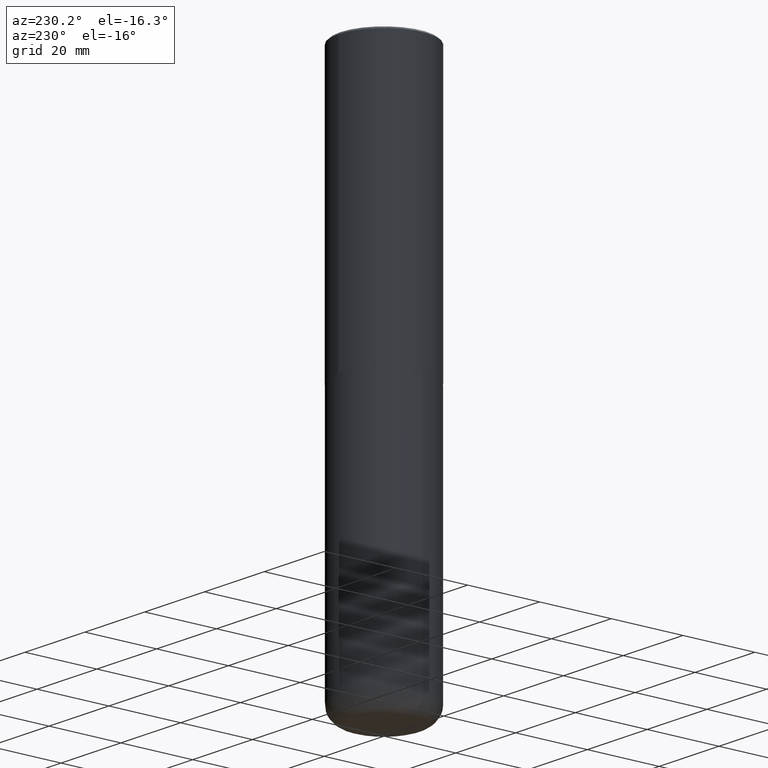
[diagram: clean part render]
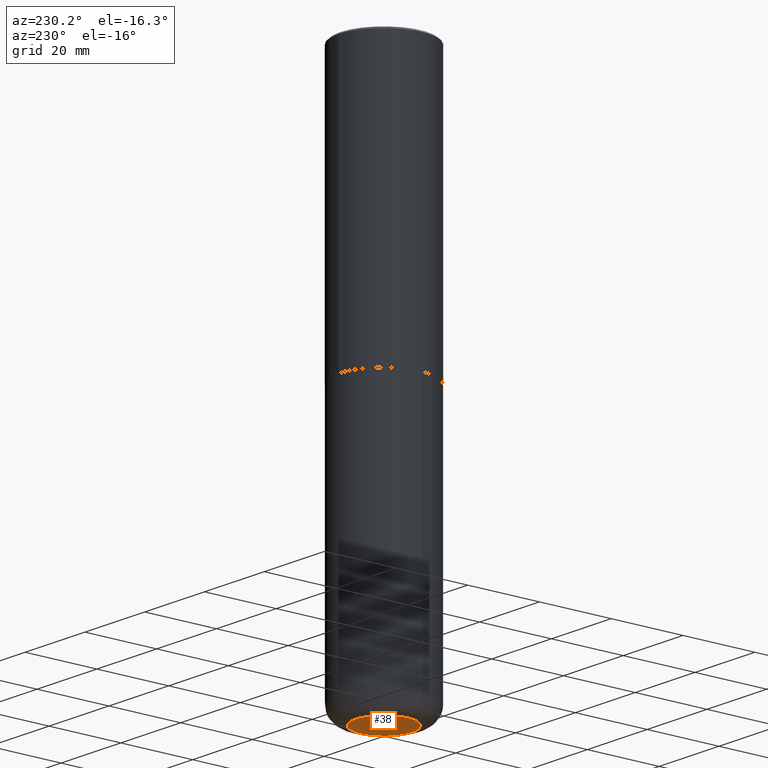
[diagram: same view with one face highlighted and labeled with its STEP entity id]
A machine part, auxiliary view. The second image highlights one B-rep face of the part: STEP entity #38.
In plain terms, the highlighted planar face has unit normal (0, -0, -1).
Its self-contained STEP definition (entity closure, byte-faithful):
#20 = AXIS2_PLACEMENT_3D ( 'NONE', #35, #22, #210 ) ;
#22 = DIRECTION ( 'NONE',  ( -2.445468806185136597E-29, 3.491481338843145583E-15, 1.000000000000000000 ) ) ;
#33 = ORIENTED_EDGE ( 'NONE', *, *, #330, .F. ) ;
#35 = CARTESIAN_POINT ( 'NONE',  ( 1.467281283711081958E-28, -2.094888803305887271E-14, -6.000000000000000888 ) ) ;
#38 = ADVANCED_FACE ( 'NONE', ( #40 ), #224, .T. ) ;
#40 = FACE_OUTER_BOUND ( 'NONE', #154, .T. ) ;
#57 = CARTESIAN_POINT ( 'NONE',  ( 1.467281283711081958E-28, -2.094888803305887271E-14, -6.000000000000000888 ) ) ;
#119 = DIRECTION ( 'NONE',  ( 1.000000000000000000, -6.982962677686263555E-15, 0.000000000000000000 ) ) ;
#154 = EDGE_LOOP ( 'NONE', ( #241, #33 ) ) ;
#162 = EDGE_CURVE ( 'NONE', #180, #332, #329, .T. ) ;
#180 = VERTEX_POINT ( 'NONE', #391 ) ;
#192 = CIRCLE ( 'NONE', #277, 0.3099999999999999978 ) ;
#209 = DIRECTION ( 'NONE',  ( -2.445468806185136597E-29, 3.491481338843145583E-15, 1.000000000000000000 ) ) ;
#210 = DIRECTION ( 'NONE',  ( 1.000000000000000000, -6.982962677686263555E-15, 0.000000000000000000 ) ) ;
#211 = DIRECTION ( 'NONE',  ( -1.000000000000000000, 6.982962677686265922E-15, -4.876176775795935793E-29 ) ) ;
#224 = PLANE ( 'NONE',  #346 ) ;
#241 = ORIENTED_EDGE ( 'NONE', *, *, #162, .F. ) ;
#262 = CARTESIAN_POINT ( 'NONE',  ( 1.467281283711081958E-28, -2.094888803305887271E-14, -6.000000000000000888 ) ) ;
#277 = AXIS2_PLACEMENT_3D ( 'NONE', #57, #209, #119 ) ;
#329 = CIRCLE ( 'NONE', #20, 0.3099999999999999978 ) ;
#330 = EDGE_CURVE ( 'NONE', #332, #180, #192, .T. ) ;
#332 = VERTEX_POINT ( 'NONE', #374 ) ;
#346 = AXIS2_PLACEMENT_3D ( 'NONE', #262, #418, #211 ) ;
#374 = CARTESIAN_POINT ( 'NONE',  ( -0.3099999999999999978, -1.773949922604037162E-14, -6.000000000000000888 ) ) ;
#391 = CARTESIAN_POINT ( 'NONE',  ( 0.3099999999999999978, -2.311360646314161602E-14, -6.000000000000000888 ) ) ;
#418 = DIRECTION ( 'NONE',  ( 2.438088387897960049E-29, -3.491481338843145188E-15, -1.000000000000000000 ) ) ;